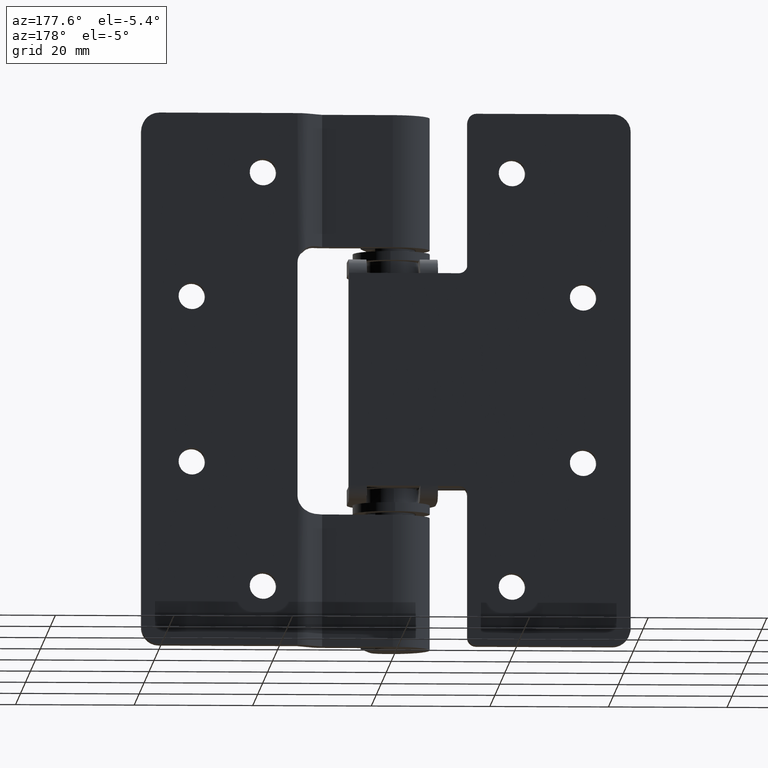
[diagram: clean part render]
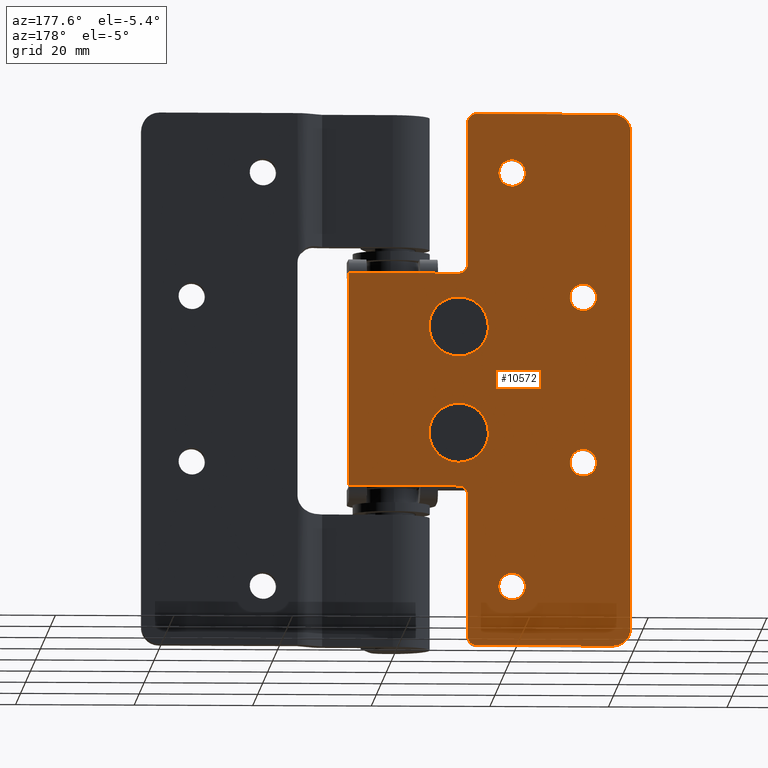
[diagram: same view with one face highlighted and labeled with its STEP entity id]
A machine part, auxiliary view. The second image highlights one B-rep face of the part: STEP entity #10572.
In plain terms, the highlighted face is a freeform B-spline surface patch.
Its self-contained STEP definition (entity closure, byte-faithful):
#8036=CARTESIAN_POINT('',(-6.009326007858777,9.500000000059496,54.305242698124232));
#8037=VERTEX_POINT('',#8036);
#8038=CARTESIAN_POINT('',(-11.000000000000201,9.500000000000000,49.0));
#8039=VERTEX_POINT('',#8038);
#8040=CARTESIAN_POINT('',(-6.009326007858777,9.500000000059496,54.305242698124232));
#8041=CARTESIAN_POINT('',(-5.999999999941666,9.500000000058643,54.152763816720324));
#8042=CARTESIAN_POINT('',(-5.999999999942574,9.500000000057735,54.000000000003539));
#8043=CARTESIAN_POINT('',(-5.999999999972267,9.500000000027985,49.000000000001727));
#8044=CARTESIAN_POINT('',(-11.000000000000201,9.500000000000000,49.0));
#8052=(BOUNDED_CURVE()B_SPLINE_CURVE(2,(#8040,#8041,#8042,#8043,#8044),.UNSPECIFIED.,.F.,.U.)B_SPLINE_CURVE_WITH_KNOTS((3,2,3),(0.239332962226537,0.250000000000000,0.500000000000000),.UNSPECIFIED.)CURVE()GEOMETRIC_REPRESENTATION_ITEM()RATIONAL_B_SPLINE_CURVE((0.976072041640131,0.987502787885303,1.0,0.707106781186548,1.0))REPRESENTATION_ITEM(''));
#8053=EDGE_CURVE('',#8037,#8039,#8052,.T.);
#8055=CARTESIAN_POINT('',(-15.990673992141620,9.500000000059497,53.694757301875768));
#8056=VERTEX_POINT('',#8055);
#8057=CARTESIAN_POINT('',(-11.000000000000201,9.500000000000000,49.0));
#8058=CARTESIAN_POINT('',(-15.703530334136957,9.500000000029749,48.999999999998181));
#8059=CARTESIAN_POINT('',(-15.990673992141625,9.500000000059496,53.694757301875768));
#8067=(BOUNDED_CURVE()B_SPLINE_CURVE(2,(#8057,#8058,#8059),.UNSPECIFIED.,.F.,.U.)B_SPLINE_CURVE_WITH_KNOTS((3,3),(0.500000000000000,0.739332962226538),.UNSPECIFIED.)CURVE()GEOMETRIC_REPRESENTATION_ITEM()RATIONAL_B_SPLINE_CURVE((1.0,0.719603993301244,0.976072041640131))REPRESENTATION_ITEM(''));
#8068=EDGE_CURVE('',#8039,#8056,#8067,.T.);
#8135=CARTESIAN_POINT('',(-11.000000000000201,9.500000000000000,59.0));
#8136=VERTEX_POINT('',#8135);
#8137=CARTESIAN_POINT('',(-11.000000000000201,9.500000000000000,59.0));
#8138=CARTESIAN_POINT('',(-6.296469665863457,9.500000000029747,59.000000000001805));
#8139=CARTESIAN_POINT('',(-6.009326007858777,9.500000000059496,54.305242698124232));
#8147=(BOUNDED_CURVE()B_SPLINE_CURVE(2,(#8137,#8138,#8139),.UNSPECIFIED.,.F.,.U.)B_SPLINE_CURVE_WITH_KNOTS((3,3),(0.0,0.239332962226537),.UNSPECIFIED.)CURVE()GEOMETRIC_REPRESENTATION_ITEM()RATIONAL_B_SPLINE_CURVE((1.0,0.719603993301244,0.976072041640130))REPRESENTATION_ITEM(''));
#8148=EDGE_CURVE('',#8136,#8037,#8147,.T.);
#8182=CARTESIAN_POINT('',(-15.990673992141627,9.500000000059497,53.694757301875768));
#8183=CARTESIAN_POINT('',(-16.000000000058730,9.500000000058643,53.847236183279712));
#8184=CARTESIAN_POINT('',(-16.000000000057820,9.500000000057733,53.999999999996483));
#8185=CARTESIAN_POINT('',(-16.000000000028127,9.500000000027985,58.999999999998280));
#8186=CARTESIAN_POINT('',(-11.000000000000201,9.500000000000000,59.0));
#8194=(BOUNDED_CURVE()B_SPLINE_CURVE(2,(#8182,#8183,#8184,#8185,#8186),.UNSPECIFIED.,.F.,.U.)B_SPLINE_CURVE_WITH_KNOTS((3,2,3),(0.739332962226537,0.750000000000000,1.0),.UNSPECIFIED.)CURVE()GEOMETRIC_REPRESENTATION_ITEM()RATIONAL_B_SPLINE_CURVE((0.976072041640130,0.987502787885303,1.0,0.707106781186548,1.0))REPRESENTATION_ITEM(''));
#8195=EDGE_CURVE('',#8056,#8136,#8194,.T.);
#8218=CARTESIAN_POINT('',(-6.009326007858775,9.500000000059497,36.305242698124232));
#8219=VERTEX_POINT('',#8218);
#8220=CARTESIAN_POINT('',(-11.000000000000201,9.500000000000000,31.0));
#8221=VERTEX_POINT('',#8220);
#8222=CARTESIAN_POINT('',(-6.009326007858777,9.500000000059497,36.305242698124232));
#8223=CARTESIAN_POINT('',(-5.999999999941667,9.500000000058643,36.152763816720309));
#8224=CARTESIAN_POINT('',(-5.999999999942575,9.500000000057733,36.000000000003517));
#8225=CARTESIAN_POINT('',(-5.999999999972268,9.500000000027985,31.000000000001705));
#8226=CARTESIAN_POINT('',(-11.000000000000201,9.500000000000000,31.0));
#8234=(BOUNDED_CURVE()B_SPLINE_CURVE(2,(#8222,#8223,#8224,#8225,#8226),.UNSPECIFIED.,.F.,.U.)B_SPLINE_CURVE_WITH_KNOTS((3,2,3),(0.239332962226537,0.250000000000000,0.500000000000000),.UNSPECIFIED.)CURVE()GEOMETRIC_REPRESENTATION_ITEM()RATIONAL_B_SPLINE_CURVE((0.976072041640131,0.987502787885303,1.0,0.707106781186548,1.0))REPRESENTATION_ITEM(''));
#8235=EDGE_CURVE('',#8219,#8221,#8234,.T.);
#8237=CARTESIAN_POINT('',(-15.990673992141620,9.500000000059496,35.694757301875768));
#8238=VERTEX_POINT('',#8237);
#8239=CARTESIAN_POINT('',(-11.000000000000201,9.500000000000000,31.0));
#8240=CARTESIAN_POINT('',(-15.703530334136927,9.500000000029750,30.999999999998192));
#8241=CARTESIAN_POINT('',(-15.990673992141618,9.500000000059497,35.694757301875761));
#8249=(BOUNDED_CURVE()B_SPLINE_CURVE(2,(#8239,#8240,#8241),.UNSPECIFIED.,.F.,.U.)B_SPLINE_CURVE_WITH_KNOTS((3,3),(0.500000000000000,0.739332962226537),.UNSPECIFIED.)CURVE()GEOMETRIC_REPRESENTATION_ITEM()RATIONAL_B_SPLINE_CURVE((1.0,0.719603993301245,0.976072041640130))REPRESENTATION_ITEM(''));
#8250=EDGE_CURVE('',#8221,#8238,#8249,.T.);
#8317=CARTESIAN_POINT('',(-11.000000000000201,9.500000000000000,40.999999999999993));
#8318=VERTEX_POINT('',#8317);
#8319=CARTESIAN_POINT('',(-11.000000000000201,9.500000000000000,40.999999999999993));
#8320=CARTESIAN_POINT('',(-6.296469665863457,9.500000000029747,41.000000000001805));
#8321=CARTESIAN_POINT('',(-6.009326007858777,9.500000000059497,36.305242698124232));
#8329=(BOUNDED_CURVE()B_SPLINE_CURVE(2,(#8319,#8320,#8321),.UNSPECIFIED.,.F.,.U.)B_SPLINE_CURVE_WITH_KNOTS((3,3),(0.0,0.239332962226537),.UNSPECIFIED.)CURVE()GEOMETRIC_REPRESENTATION_ITEM()RATIONAL_B_SPLINE_CURVE((1.0,0.719603993301244,0.976072041640130))REPRESENTATION_ITEM(''));
#8330=EDGE_CURVE('',#8318,#8219,#8329,.T.);
#8364=CARTESIAN_POINT('',(-15.990673992141618,9.500000000059497,35.694757301875761));
#8365=CARTESIAN_POINT('',(-16.000000000058737,9.500000000058643,35.847236183279712));
#8366=CARTESIAN_POINT('',(-16.000000000057831,9.500000000057735,35.999999999996497));
#8367=CARTESIAN_POINT('',(-16.000000000028127,9.500000000027985,40.999999999998288));
#8368=CARTESIAN_POINT('',(-11.000000000000201,9.500000000000000,40.999999999999993));
#8376=(BOUNDED_CURVE()B_SPLINE_CURVE(2,(#8364,#8365,#8366,#8367,#8368),.UNSPECIFIED.,.F.,.U.)B_SPLINE_CURVE_WITH_KNOTS((3,2,3),(0.739332962226537,0.750000000000000,1.0),.UNSPECIFIED.)CURVE()GEOMETRIC_REPRESENTATION_ITEM()RATIONAL_B_SPLINE_CURVE((0.976072041640130,0.987502787885303,1.0,0.707106781186548,1.0))REPRESENTATION_ITEM(''));
#8377=EDGE_CURVE('',#8238,#8318,#8376,.T.);
#8400=CARTESIAN_POINT('',(-20.0,9.500000000000000,82.250000000000000));
#8401=VERTEX_POINT('',#8400);
#8402=CARTESIAN_POINT('',(-22.243064000878789,9.500000000000000,80.176532965651262));
#8403=VERTEX_POINT('',#8402);
#8404=CARTESIAN_POINT('',(-20.0,9.500000000000000,82.250000000000000));
#8405=CARTESIAN_POINT('',(-22.079878605985783,9.499999999999998,82.249999999999972));
#8406=CARTESIAN_POINT('',(-22.243064000878793,9.500000000000000,80.176532965651248));
#8414=(BOUNDED_CURVE()B_SPLINE_CURVE(2,(#8404,#8405,#8406),.UNSPECIFIED.,.F.,.U.)B_SPLINE_CURVE_WITH_KNOTS((3,3),(0.0,0.236331300612622),.UNSPECIFIED.)CURVE()GEOMETRIC_REPRESENTATION_ITEM()RATIONAL_B_SPLINE_CURVE((1.0,0.723120658628798,0.969723356129774))REPRESENTATION_ITEM(''));
#8415=EDGE_CURVE('',#8401,#8403,#8414,.T.);
#8417=CARTESIAN_POINT('',(-17.756935999121211,9.500000000000000,79.823467034348738));
#8418=VERTEX_POINT('',#8417);
#8419=CARTESIAN_POINT('',(-17.756935999121211,9.500000000000000,79.823467034348738));
#8420=CARTESIAN_POINT('',(-17.750000000000011,9.500000000000000,79.911597259100319));
#8421=CARTESIAN_POINT('',(-17.750000000000000,9.500000000000000,80.0));
#8422=CARTESIAN_POINT('',(-17.750000000000004,9.500000000000000,82.250000000000000));
#8423=CARTESIAN_POINT('',(-20.0,9.500000000000000,82.250000000000000));
#8431=(BOUNDED_CURVE()B_SPLINE_CURVE(2,(#8419,#8420,#8421,#8422,#8423),.UNSPECIFIED.,.F.,.U.)B_SPLINE_CURVE_WITH_KNOTS((3,2,3),(0.736331300612621,0.750000000000000,1.0),.UNSPECIFIED.)CURVE()GEOMETRIC_REPRESENTATION_ITEM()RATIONAL_B_SPLINE_CURVE((0.969723356129773,0.983986122557749,1.0,0.707106781186547,1.0))REPRESENTATION_ITEM(''));
#8432=EDGE_CURVE('',#8418,#8401,#8431,.T.);
#8499=CARTESIAN_POINT('',(-20.0,9.500000000000000,77.750000000000000));
#8500=VERTEX_POINT('',#8499);
#8501=CARTESIAN_POINT('',(-22.243064000878793,9.500000000000000,80.176532965651234));
#8502=CARTESIAN_POINT('',(-22.250000000000000,9.500000000000000,80.088402740899653));
#8503=CARTESIAN_POINT('',(-22.250000000000000,9.500000000000000,80.0));
#8504=CARTESIAN_POINT('',(-22.250000000000000,9.500000000000000,77.750000000000014));
#8505=CARTESIAN_POINT('',(-20.0,9.500000000000000,77.750000000000000));
#8513=(BOUNDED_CURVE()B_SPLINE_CURVE(2,(#8501,#8502,#8503,#8504,#8505),.UNSPECIFIED.,.F.,.U.)B_SPLINE_CURVE_WITH_KNOTS((3,2,3),(0.236331300612622,0.250000000000000,0.500000000000000),.UNSPECIFIED.)CURVE()GEOMETRIC_REPRESENTATION_ITEM()RATIONAL_B_SPLINE_CURVE((0.969723356129774,0.983986122557749,1.0,0.707106781186547,1.0))REPRESENTATION_ITEM(''));
#8514=EDGE_CURVE('',#8403,#8500,#8513,.T.);
#8548=CARTESIAN_POINT('',(-20.0,9.500000000000000,77.750000000000000));
#8549=CARTESIAN_POINT('',(-17.920121394014231,9.499999999999998,77.750000000000000));
#8550=CARTESIAN_POINT('',(-17.756935999121215,9.500000000000000,79.823467034348724));
#8558=(BOUNDED_CURVE()B_SPLINE_CURVE(2,(#8548,#8549,#8550),.UNSPECIFIED.,.F.,.U.)B_SPLINE_CURVE_WITH_KNOTS((3,3),(0.500000000000000,0.736331300612620),.UNSPECIFIED.)CURVE()GEOMETRIC_REPRESENTATION_ITEM()RATIONAL_B_SPLINE_CURVE((1.0,0.723120658628800,0.969723356129771))REPRESENTATION_ITEM(''));
#8559=EDGE_CURVE('',#8500,#8418,#8558,.T.);
#8582=CARTESIAN_POINT('',(-32.0,9.500000000000000,61.250000000000000));
#8583=VERTEX_POINT('',#8582);
#8584=CARTESIAN_POINT('',(-34.243064000878789,9.500000000000000,59.176532965651262));
#8585=VERTEX_POINT('',#8584);
#8586=CARTESIAN_POINT('',(-32.0,9.500000000000000,61.250000000000000));
#8587=CARTESIAN_POINT('',(-34.079878605985790,9.500000000000000,61.249999999999979));
#8588=CARTESIAN_POINT('',(-34.243064000878796,9.500000000000002,59.176532965651248));
#8596=(BOUNDED_CURVE()B_SPLINE_CURVE(2,(#8586,#8587,#8588),.UNSPECIFIED.,.F.,.U.)B_SPLINE_CURVE_WITH_KNOTS((3,3),(0.0,0.236331300612621),.UNSPECIFIED.)CURVE()GEOMETRIC_REPRESENTATION_ITEM()RATIONAL_B_SPLINE_CURVE((1.0,0.723120658628799,0.969723356129773))REPRESENTATION_ITEM(''));
#8597=EDGE_CURVE('',#8583,#8585,#8596,.T.);
#8599=CARTESIAN_POINT('',(-29.756935999121211,9.500000000000000,58.823467034348752));
#8600=VERTEX_POINT('',#8599);
#8601=CARTESIAN_POINT('',(-29.756935999121207,9.500000000000000,58.823467034348759));
#8602=CARTESIAN_POINT('',(-29.750000000000004,9.500000000000002,58.911597259100340));
#8603=CARTESIAN_POINT('',(-29.750000000000000,9.500000000000000,59.0));
#8604=CARTESIAN_POINT('',(-29.750000000000007,9.500000000000000,61.250000000000000));
#8605=CARTESIAN_POINT('',(-32.0,9.500000000000000,61.250000000000000));
#8613=(BOUNDED_CURVE()B_SPLINE_CURVE(2,(#8601,#8602,#8603,#8604,#8605),.UNSPECIFIED.,.F.,.U.)B_SPLINE_CURVE_WITH_KNOTS((3,2,3),(0.736331300612622,0.750000000000000,1.0),.UNSPECIFIED.)CURVE()GEOMETRIC_REPRESENTATION_ITEM()RATIONAL_B_SPLINE_CURVE((0.969723356129774,0.983986122557749,1.0,0.707106781186547,1.0))REPRESENTATION_ITEM(''));
#8614=EDGE_CURVE('',#8600,#8583,#8613,.T.);
#8681=CARTESIAN_POINT('',(-32.0,9.500000000000000,56.749999999999993));
#8682=VERTEX_POINT('',#8681);
#8683=CARTESIAN_POINT('',(-34.243064000878789,9.500000000000000,59.176532965651262));
#8684=CARTESIAN_POINT('',(-34.249999999999993,9.500000000000000,59.088402740899674));
#8685=CARTESIAN_POINT('',(-34.250000000000000,9.500000000000000,59.0));
#8686=CARTESIAN_POINT('',(-34.250000000000000,9.500000000000000,56.749999999999993));
#8687=CARTESIAN_POINT('',(-32.0,9.500000000000000,56.749999999999993));
#8695=(BOUNDED_CURVE()B_SPLINE_CURVE(2,(#8683,#8684,#8685,#8686,#8687),.UNSPECIFIED.,.F.,.U.)B_SPLINE_CURVE_WITH_KNOTS((3,2,3),(0.236331300612621,0.250000000000000,0.500000000000000),.UNSPECIFIED.)CURVE()GEOMETRIC_REPRESENTATION_ITEM()RATIONAL_B_SPLINE_CURVE((0.969723356129773,0.983986122557749,1.0,0.707106781186547,1.0))REPRESENTATION_ITEM(''));
#8696=EDGE_CURVE('',#8585,#8682,#8695,.T.);
#8730=CARTESIAN_POINT('',(-32.0,9.500000000000000,56.749999999999993));
#8731=CARTESIAN_POINT('',(-29.920121394014227,9.500000000000000,56.749999999999986));
#8732=CARTESIAN_POINT('',(-29.756935999121211,9.500000000000000,58.823467034348731));
#8740=(BOUNDED_CURVE()B_SPLINE_CURVE(2,(#8730,#8731,#8732),.UNSPECIFIED.,.F.,.U.)B_SPLINE_CURVE_WITH_KNOTS((3,3),(0.500000000000000,0.736331300612621),.UNSPECIFIED.)CURVE()GEOMETRIC_REPRESENTATION_ITEM()RATIONAL_B_SPLINE_CURVE((1.0,0.723120658628799,0.969723356129772))REPRESENTATION_ITEM(''));
#8741=EDGE_CURVE('',#8682,#8600,#8740,.T.);
#8764=CARTESIAN_POINT('',(-20.0,9.500000000000000,12.250000000000000));
#8765=VERTEX_POINT('',#8764);
#8766=CARTESIAN_POINT('',(-22.243064000878789,9.500000000000000,10.176532965651260));
#8767=VERTEX_POINT('',#8766);
#8768=CARTESIAN_POINT('',(-20.0,9.500000000000000,12.250000000000000));
#8769=CARTESIAN_POINT('',(-22.079878605985783,9.500000000000000,12.249999999999996));
#8770=CARTESIAN_POINT('',(-22.243064000878793,9.500000000000002,10.176532965651257));
#8778=(BOUNDED_CURVE()B_SPLINE_CURVE(2,(#8768,#8769,#8770),.UNSPECIFIED.,.F.,.U.)B_SPLINE_CURVE_WITH_KNOTS((3,3),(0.0,0.236331300612621),.UNSPECIFIED.)CURVE()GEOMETRIC_REPRESENTATION_ITEM()RATIONAL_B_SPLINE_CURVE((1.0,0.723120658628799,0.969723356129773))REPRESENTATION_ITEM(''));
#8779=EDGE_CURVE('',#8765,#8767,#8778,.T.);
#8781=CARTESIAN_POINT('',(-17.756935999121211,9.500000000000000,9.823467034348743));
#8782=VERTEX_POINT('',#8781);
#8783=CARTESIAN_POINT('',(-17.756935999121215,9.499999999999998,9.823467034348738));
#8784=CARTESIAN_POINT('',(-17.750000000000007,9.499999999999998,9.911597259100326));
#8785=CARTESIAN_POINT('',(-17.750000000000000,9.500000000000000,10.0));
#8786=CARTESIAN_POINT('',(-17.750000000000004,9.500000000000000,12.249999999999996));
#8787=CARTESIAN_POINT('',(-20.0,9.500000000000000,12.250000000000000));
#8795=(BOUNDED_CURVE()B_SPLINE_CURVE(2,(#8783,#8784,#8785,#8786,#8787),.UNSPECIFIED.,.F.,.U.)B_SPLINE_CURVE_WITH_KNOTS((3,2,3),(0.736331300612621,0.750000000000000,1.0),.UNSPECIFIED.)CURVE()GEOMETRIC_REPRESENTATION_ITEM()RATIONAL_B_SPLINE_CURVE((0.969723356129773,0.983986122557748,1.0,0.707106781186547,1.0))REPRESENTATION_ITEM(''));
#8796=EDGE_CURVE('',#8782,#8765,#8795,.T.);
#8863=CARTESIAN_POINT('',(-20.0,9.500000000000000,7.750000000000000));
#8864=VERTEX_POINT('',#8863);
#8865=CARTESIAN_POINT('',(-22.243064000878789,9.500000000000000,10.176532965651257));
#8866=CARTESIAN_POINT('',(-22.250000000000007,9.500000000000000,10.088402740899669));
#8867=CARTESIAN_POINT('',(-22.250000000000000,9.500000000000000,10.0));
#8868=CARTESIAN_POINT('',(-22.250000000000000,9.500000000000000,7.750000000000001));
#8869=CARTESIAN_POINT('',(-20.0,9.500000000000000,7.750000000000000));
#8877=(BOUNDED_CURVE()B_SPLINE_CURVE(2,(#8865,#8866,#8867,#8868,#8869),.UNSPECIFIED.,.F.,.U.)B_SPLINE_CURVE_WITH_KNOTS((3,2,3),(0.236331300612621,0.250000000000000,0.500000000000000),.UNSPECIFIED.)CURVE()GEOMETRIC_REPRESENTATION_ITEM()RATIONAL_B_SPLINE_CURVE((0.969723356129773,0.983986122557749,1.0,0.707106781186547,1.0))REPRESENTATION_ITEM(''));
#8878=EDGE_CURVE('',#8767,#8864,#8877,.T.);
#8912=CARTESIAN_POINT('',(-20.0,9.500000000000000,7.750000000000000));
#8913=CARTESIAN_POINT('',(-17.920121394014224,9.499999999999998,7.749999999999999));
#8914=CARTESIAN_POINT('',(-17.756935999121215,9.499999999999998,9.823467034348738));
#8922=(BOUNDED_CURVE()B_SPLINE_CURVE(2,(#8912,#8913,#8914),.UNSPECIFIED.,.F.,.U.)B_SPLINE_CURVE_WITH_KNOTS((3,3),(0.500000000000000,0.736331300612621),.UNSPECIFIED.)CURVE()GEOMETRIC_REPRESENTATION_ITEM()RATIONAL_B_SPLINE_CURVE((1.0,0.723120658628799,0.969723356129773))REPRESENTATION_ITEM(''));
#8923=EDGE_CURVE('',#8864,#8782,#8922,.T.);
#8946=CARTESIAN_POINT('',(-32.0,9.500000000000000,33.250000000000000));
#8947=VERTEX_POINT('',#8946);
#8948=CARTESIAN_POINT('',(-34.243064000878789,9.499999999999998,31.176532965651258));
#8949=VERTEX_POINT('',#8948);
#8950=CARTESIAN_POINT('',(-32.0,9.500000000000000,33.250000000000000));
#8951=CARTESIAN_POINT('',(-34.079878605985776,9.500000000000000,33.249999999999993));
#8952=CARTESIAN_POINT('',(-34.243064000878789,9.500000000000002,31.176532965651262));
#8960=(BOUNDED_CURVE()B_SPLINE_CURVE(2,(#8950,#8951,#8952),.UNSPECIFIED.,.F.,.U.)B_SPLINE_CURVE_WITH_KNOTS((3,3),(0.0,0.236331300612621),.UNSPECIFIED.)CURVE()GEOMETRIC_REPRESENTATION_ITEM()RATIONAL_B_SPLINE_CURVE((1.0,0.723120658628799,0.969723356129773))REPRESENTATION_ITEM(''));
#8961=EDGE_CURVE('',#8947,#8949,#8960,.T.);
#8963=CARTESIAN_POINT('',(-29.756935999121211,9.500000000000000,30.823467034348742));
#8964=VERTEX_POINT('',#8963);
#8965=CARTESIAN_POINT('',(-29.756935999121215,9.499999999999998,30.823467034348738));
#8966=CARTESIAN_POINT('',(-29.750000000000007,9.500000000000000,30.911597259100326));
#8967=CARTESIAN_POINT('',(-29.750000000000000,9.500000000000000,31.0));
#8968=CARTESIAN_POINT('',(-29.750000000000007,9.500000000000000,33.249999999999993));
#8969=CARTESIAN_POINT('',(-32.0,9.500000000000000,33.250000000000000));
#8977=(BOUNDED_CURVE()B_SPLINE_CURVE(2,(#8965,#8966,#8967,#8968,#8969),.UNSPECIFIED.,.F.,.U.)B_SPLINE_CURVE_WITH_KNOTS((3,2,3),(0.736331300612621,0.750000000000000,1.0),.UNSPECIFIED.)CURVE()GEOMETRIC_REPRESENTATION_ITEM()RATIONAL_B_SPLINE_CURVE((0.969723356129772,0.983986122557748,1.0,0.707106781186547,1.0))REPRESENTATION_ITEM(''));
#8978=EDGE_CURVE('',#8964,#8947,#8977,.T.);
#9045=CARTESIAN_POINT('',(-32.0,9.500000000000000,28.750000000000000));
#9046=VERTEX_POINT('',#9045);
#9047=CARTESIAN_POINT('',(-34.243064000878789,9.500000000000002,31.176532965651262));
#9048=CARTESIAN_POINT('',(-34.250000000000007,9.500000000000002,31.088402740899671));
#9049=CARTESIAN_POINT('',(-34.250000000000000,9.500000000000000,31.0));
#9050=CARTESIAN_POINT('',(-34.250000000000000,9.500000000000000,28.750000000000000));
#9051=CARTESIAN_POINT('',(-32.0,9.500000000000000,28.750000000000000));
#9059=(BOUNDED_CURVE()B_SPLINE_CURVE(2,(#9047,#9048,#9049,#9050,#9051),.UNSPECIFIED.,.F.,.U.)B_SPLINE_CURVE_WITH_KNOTS((3,2,3),(0.236331300612621,0.250000000000000,0.500000000000000),.UNSPECIFIED.)CURVE()GEOMETRIC_REPRESENTATION_ITEM()RATIONAL_B_SPLINE_CURVE((0.969723356129773,0.983986122557749,1.0,0.707106781186547,1.0))REPRESENTATION_ITEM(''));
#9060=EDGE_CURVE('',#8949,#9046,#9059,.T.);
#9094=CARTESIAN_POINT('',(-32.0,9.500000000000000,28.750000000000000));
#9095=CARTESIAN_POINT('',(-29.920121394014227,9.500000000000000,28.749999999999996));
#9096=CARTESIAN_POINT('',(-29.756935999121211,9.500000000000000,30.823467034348738));
#9104=(BOUNDED_CURVE()B_SPLINE_CURVE(2,(#9094,#9095,#9096),.UNSPECIFIED.,.F.,.U.)B_SPLINE_CURVE_WITH_KNOTS((3,3),(0.500000000000000,0.736331300612621),.UNSPECIFIED.)CURVE()GEOMETRIC_REPRESENTATION_ITEM()RATIONAL_B_SPLINE_CURVE((1.0,0.723120658628799,0.969723356129772))REPRESENTATION_ITEM(''));
#9105=EDGE_CURVE('',#9046,#8964,#9104,.T.);
#9115=CARTESIAN_POINT('',(-40.0,9.500000000000000,3.0));
#9116=VERTEX_POINT('',#9115);
#9117=CARTESIAN_POINT('',(-40.0,9.500000000000000,87.0));
#9118=VERTEX_POINT('',#9117);
#9119=CARTESIAN_POINT('',(-40.0,9.500000000000000,3.0));
#9120=CARTESIAN_POINT('',(-40.0,9.500000000000000,87.0));
#9121=QUASI_UNIFORM_CURVE('',1,(#9119,#9120),.UNSPECIFIED.,.F.,.U.);
#9122=EDGE_CURVE('',#9116,#9118,#9121,.T.);
#9151=CARTESIAN_POINT('',(-13.999999999999799,9.500000000000000,0.0));
#9152=VERTEX_POINT('',#9151);
#9153=CARTESIAN_POINT('',(-37.0,9.500000000000000,0.0));
#9154=VERTEX_POINT('',#9153);
#9155=CARTESIAN_POINT('',(-13.999999999999799,9.500000000000000,0.0));
#9156=CARTESIAN_POINT('',(-37.0,9.500000000000000,0.0));
#9157=QUASI_UNIFORM_CURVE('',1,(#9155,#9156),.UNSPECIFIED.,.F.,.U.);
#9158=EDGE_CURVE('',#9152,#9154,#9157,.T.);
#9187=CARTESIAN_POINT('',(-12.499999999999719,9.500000000000000,25.500000000000000));
#9188=VERTEX_POINT('',#9187);
#9189=CARTESIAN_POINT('',(-12.499999999999799,9.500000000000000,1.500000000000000));
#9190=VERTEX_POINT('',#9189);
#9191=CARTESIAN_POINT('',(-12.499999999999719,9.500000000000000,25.500000000000000));
#9192=CARTESIAN_POINT('',(-12.499999999999799,9.500000000000000,1.500000000000000));
#9193=QUASI_UNIFORM_CURVE('',1,(#9191,#9192),.UNSPECIFIED.,.F.,.U.);
#9194=EDGE_CURVE('',#9188,#9190,#9193,.T.);
#9223=CARTESIAN_POINT('',(7.500000000000280,9.500000000000000,63.0));
#9224=VERTEX_POINT('',#9223);
#9225=CARTESIAN_POINT('',(7.500000000000280,9.500000000000000,27.0));
#9226=VERTEX_POINT('',#9225);
#9227=CARTESIAN_POINT('',(7.500000000000280,9.500000000000000,63.0));
#9228=CARTESIAN_POINT('',(7.500000000000280,9.500000000000000,27.0));
#9229=QUASI_UNIFORM_CURVE('',1,(#9227,#9228),.UNSPECIFIED.,.F.,.U.);
#9230=EDGE_CURVE('',#9224,#9226,#9229,.T.);
#9317=CARTESIAN_POINT('',(-12.499999999999799,9.500000000000000,88.500000000000000));
#9318=VERTEX_POINT('',#9317);
#9319=CARTESIAN_POINT('',(-12.499999999999799,9.500000000000000,64.500000000000000));
#9320=VERTEX_POINT('',#9319);
#9321=CARTESIAN_POINT('',(-12.499999999999799,9.500000000000000,88.500000000000000));
#9322=CARTESIAN_POINT('',(-12.499999999999799,9.500000000000000,64.500000000000000));
#9323=QUASI_UNIFORM_CURVE('',1,(#9321,#9322),.UNSPECIFIED.,.F.,.U.);
#9324=EDGE_CURVE('',#9318,#9320,#9323,.T.);
#9362=CARTESIAN_POINT('',(-13.999999999999799,9.500000000000000,90.0));
#9363=VERTEX_POINT('',#9362);
#9369=CARTESIAN_POINT('',(-37.0,9.500000000000000,90.0));
#9370=VERTEX_POINT('',#9369);
#9371=CARTESIAN_POINT('',(-37.0,9.500000000000000,90.0));
#9372=CARTESIAN_POINT('',(-13.999999999999799,9.500000000000000,90.0));
#9373=QUASI_UNIFORM_CURVE('',1,(#9371,#9372),.UNSPECIFIED.,.F.,.U.);
#9374=EDGE_CURVE('',#9370,#9363,#9373,.T.);
#9389=CARTESIAN_POINT('',(4.499999999999605,9.500000000000000,27.0));
#9390=VERTEX_POINT('',#9389);
#9391=CARTESIAN_POINT('',(-4.499999999999915,9.500000000000000,27.0));
#9392=VERTEX_POINT('',#9391);
#9393=CARTESIAN_POINT('',(4.499999999999605,9.500000000000000,27.0));
#9394=CARTESIAN_POINT('',(-4.499999999999915,9.500000000000000,27.0));
#9395=QUASI_UNIFORM_CURVE('',1,(#9393,#9394),.UNSPECIFIED.,.F.,.U.);
#9396=EDGE_CURVE('',#9390,#9392,#9395,.T.);
#9425=CARTESIAN_POINT('',(-7.500000000000110,9.500000000000000,27.0));
#9426=VERTEX_POINT('',#9425);
#9427=CARTESIAN_POINT('',(-10.999999999999719,9.500000000000000,27.0));
#9428=VERTEX_POINT('',#9427);
#9429=CARTESIAN_POINT('',(-7.500000000000110,9.500000000000000,27.0));
#9430=CARTESIAN_POINT('',(-10.999999999999719,9.500000000000000,27.0));
#9431=QUASI_UNIFORM_CURVE('',1,(#9429,#9430),.UNSPECIFIED.,.F.,.U.);
#9432=EDGE_CURVE('',#9426,#9428,#9431,.T.);
#9470=CARTESIAN_POINT('',(4.499999999999480,9.500000000000000,63.0));
#9471=VERTEX_POINT('',#9470);
#9477=CARTESIAN_POINT('',(-4.500000000000000,9.500000000000000,63.0));
#9478=VERTEX_POINT('',#9477);
#9479=CARTESIAN_POINT('',(-4.500000000000000,9.500000000000000,63.0));
#9480=CARTESIAN_POINT('',(4.499999999999480,9.500000000000000,63.0));
#9481=QUASI_UNIFORM_CURVE('',1,(#9479,#9480),.UNSPECIFIED.,.F.,.U.);
#9482=EDGE_CURVE('',#9478,#9471,#9481,.T.);
#9507=CARTESIAN_POINT('',(4.499999999999480,9.500000000000000,63.0));
#9508=CARTESIAN_POINT('',(7.500000000000280,9.500000000000000,63.0));
#9509=QUASI_UNIFORM_CURVE('',1,(#9507,#9508),.UNSPECIFIED.,.F.,.U.);
#9510=EDGE_CURVE('',#9471,#9224,#9509,.T.);
#9564=CARTESIAN_POINT('',(-7.500000000000240,9.500000000000000,63.0));
#9565=VERTEX_POINT('',#9564);
#9566=CARTESIAN_POINT('',(-7.500000000000240,9.500000000000000,63.0));
#9567=CARTESIAN_POINT('',(-4.500000000000000,9.500000000000000,63.0));
#9568=QUASI_UNIFORM_CURVE('',1,(#9566,#9567),.UNSPECIFIED.,.F.,.U.);
#9569=EDGE_CURVE('',#9565,#9478,#9568,.T.);
#9643=CARTESIAN_POINT('',(-4.499999999999915,9.500000000000000,27.0));
#9644=CARTESIAN_POINT('',(-7.500000000000110,9.500000000000000,27.0));
#9645=QUASI_UNIFORM_CURVE('',1,(#9643,#9644),.UNSPECIFIED.,.F.,.U.);
#9646=EDGE_CURVE('',#9392,#9426,#9645,.T.);
#9686=CARTESIAN_POINT('',(7.500000000000280,9.500000000000000,27.0));
#9687=CARTESIAN_POINT('',(4.499999999999605,9.500000000000000,27.0));
#9688=QUASI_UNIFORM_CURVE('',1,(#9686,#9687),.UNSPECIFIED.,.F.,.U.);
#9689=EDGE_CURVE('',#9226,#9390,#9688,.T.);
#10255=CARTESIAN_POINT('',(-12.499999999999799,9.500000000000000,1.500000000000000));
#10256=CARTESIAN_POINT('',(-12.499999999999799,9.500000000000000,0.0));
#10257=CARTESIAN_POINT('',(-13.999999999999799,9.500000000000000,0.0));
#10265=(BOUNDED_CURVE()B_SPLINE_CURVE(2,(#10255,#10256,#10257),.UNSPECIFIED.,.F.,.U.)CURVE()GEOMETRIC_REPRESENTATION_ITEM()QUASI_UNIFORM_CURVE()RATIONAL_B_SPLINE_CURVE((1.0,0.707106781186548,1.0))REPRESENTATION_ITEM(''));
#10266=EDGE_CURVE('',#9190,#9152,#10265,.T.);
#10300=CARTESIAN_POINT('',(-10.999999999999719,9.500000000000000,27.0));
#10301=CARTESIAN_POINT('',(-12.499999999999718,9.500000000000000,27.000000000000011));
#10302=CARTESIAN_POINT('',(-12.499999999999719,9.500000000000000,25.500000000000000));
#10310=(BOUNDED_CURVE()B_SPLINE_CURVE(2,(#10300,#10301,#10302),.UNSPECIFIED.,.F.,.U.)CURVE()GEOMETRIC_REPRESENTATION_ITEM()QUASI_UNIFORM_CURVE()RATIONAL_B_SPLINE_CURVE((1.0,0.707106781186548,1.0))REPRESENTATION_ITEM(''));
#10311=EDGE_CURVE('',#9428,#9188,#10310,.T.);
#10346=CARTESIAN_POINT('',(-10.999999999999799,9.500000000000000,63.0));
#10347=VERTEX_POINT('',#10346);
#10353=CARTESIAN_POINT('',(-12.499999999999799,9.500000000000000,64.500000000000000));
#10354=CARTESIAN_POINT('',(-12.499999999999799,9.500000000000000,63.0));
#10355=CARTESIAN_POINT('',(-10.999999999999799,9.500000000000000,63.0));
#10363=(BOUNDED_CURVE()B_SPLINE_CURVE(2,(#10353,#10354,#10355),.UNSPECIFIED.,.F.,.U.)CURVE()GEOMETRIC_REPRESENTATION_ITEM()QUASI_UNIFORM_CURVE()RATIONAL_B_SPLINE_CURVE((1.0,0.707106781186548,1.0))REPRESENTATION_ITEM(''));
#10364=EDGE_CURVE('',#9320,#10347,#10363,.T.);
#10398=CARTESIAN_POINT('',(-13.999999999999799,9.500000000000000,90.0));
#10399=CARTESIAN_POINT('',(-12.499999999999799,9.500000000000000,89.999999999999986));
#10400=CARTESIAN_POINT('',(-12.499999999999799,9.500000000000000,88.500000000000000));
#10408=(BOUNDED_CURVE()B_SPLINE_CURVE(2,(#10398,#10399,#10400),.UNSPECIFIED.,.F.,.U.)CURVE()GEOMETRIC_REPRESENTATION_ITEM()QUASI_UNIFORM_CURVE()RATIONAL_B_SPLINE_CURVE((1.0,0.707106781186548,1.0))REPRESENTATION_ITEM(''));
#10409=EDGE_CURVE('',#9363,#9318,#10408,.T.);
#10443=CARTESIAN_POINT('',(-40.0,9.500000000000000,87.0));
#10444=CARTESIAN_POINT('',(-39.999999999999993,9.500000000000000,89.999999999999986));
#10445=CARTESIAN_POINT('',(-37.0,9.500000000000000,90.0));
#10453=(BOUNDED_CURVE()B_SPLINE_CURVE(2,(#10443,#10444,#10445),.UNSPECIFIED.,.F.,.U.)CURVE()GEOMETRIC_REPRESENTATION_ITEM()QUASI_UNIFORM_CURVE()RATIONAL_B_SPLINE_CURVE((1.0,0.707106781186548,1.0))REPRESENTATION_ITEM(''));
#10454=EDGE_CURVE('',#9118,#9370,#10453,.T.);
#10488=CARTESIAN_POINT('',(-37.0,9.500000000000000,0.0));
#10489=CARTESIAN_POINT('',(-39.999999999999993,9.500000000000000,0.0));
#10490=CARTESIAN_POINT('',(-40.0,9.500000000000000,3.0));
#10498=(BOUNDED_CURVE()B_SPLINE_CURVE(2,(#10488,#10489,#10490),.UNSPECIFIED.,.F.,.U.)CURVE()GEOMETRIC_REPRESENTATION_ITEM()QUASI_UNIFORM_CURVE()RATIONAL_B_SPLINE_CURVE((1.0,0.707106781186548,1.0))REPRESENTATION_ITEM(''));
#10499=EDGE_CURVE('',#9154,#9116,#10498,.T.);
#10505=CARTESIAN_POINT('',(-42.372624907935787,9.500000000000000,94.495499825562533));
#10506=CARTESIAN_POINT('',(9.872626181985357,9.500000000000000,94.495499825562533));
#10507=CARTESIAN_POINT('',(-42.372624907935787,9.500000000000000,-4.495502239550651));
#10508=CARTESIAN_POINT('',(9.872626181985357,9.500000000000000,-4.495502239550651));
#10509=B_SPLINE_SURFACE_WITH_KNOTS('',1,1,((#10505,#10507),(#10506,#10508)),.UNSPECIFIED.,.F.,.F.,.U.,(2,2),(2,2),(0.0,52.245251089921162),(0.0,98.991002065113179),.UNSPECIFIED.);
#10510=CARTESIAN_POINT('',(-10.999999999999799,9.500000000000000,63.0));
#10511=CARTESIAN_POINT('',(-7.500000000000240,9.500000000000000,63.0));
#10512=QUASI_UNIFORM_CURVE('',1,(#10510,#10511),.UNSPECIFIED.,.F.,.U.);
#10513=EDGE_CURVE('',#10347,#9565,#10512,.T.);
#10514=ORIENTED_EDGE('',*,*,#10513,.T.);
#10515=ORIENTED_EDGE('',*,*,#9569,.T.);
#10516=ORIENTED_EDGE('',*,*,#9482,.T.);
#10517=ORIENTED_EDGE('',*,*,#9510,.T.);
#10518=ORIENTED_EDGE('',*,*,#9230,.T.);
#10519=ORIENTED_EDGE('',*,*,#9689,.T.);
#10520=ORIENTED_EDGE('',*,*,#9396,.T.);
#10521=ORIENTED_EDGE('',*,*,#9646,.T.);
#10522=ORIENTED_EDGE('',*,*,#9432,.T.);
#10523=ORIENTED_EDGE('',*,*,#10311,.T.);
#10524=ORIENTED_EDGE('',*,*,#9194,.T.);
#10525=ORIENTED_EDGE('',*,*,#10266,.T.);
#10526=ORIENTED_EDGE('',*,*,#9158,.T.);
#10527=ORIENTED_EDGE('',*,*,#10499,.T.);
#10528=ORIENTED_EDGE('',*,*,#9122,.T.);
#10529=ORIENTED_EDGE('',*,*,#10454,.T.);
#10530=ORIENTED_EDGE('',*,*,#9374,.T.);
#10531=ORIENTED_EDGE('',*,*,#10409,.T.);
#10532=ORIENTED_EDGE('',*,*,#9324,.T.);
#10533=ORIENTED_EDGE('',*,*,#10364,.T.);
#10534=EDGE_LOOP('',(#10514,#10515,#10516,#10517,#10518,#10519,#10520,#10521,#10522,#10523,#10524,#10525,#10526,#10527,#10528,#10529,#10530,#10531,#10532,#10533));
#10535=FACE_OUTER_BOUND('',#10534,.T.);
#10536=ORIENTED_EDGE('',*,*,#9105,.T.);
#10537=ORIENTED_EDGE('',*,*,#8978,.T.);
#10538=ORIENTED_EDGE('',*,*,#8961,.T.);
#10539=ORIENTED_EDGE('',*,*,#9060,.T.);
#10540=EDGE_LOOP('',(#10536,#10537,#10538,#10539));
#10541=FACE_BOUND('',#10540,.T.);
#10542=ORIENTED_EDGE('',*,*,#8923,.T.);
#10543=ORIENTED_EDGE('',*,*,#8796,.T.);
#10544=ORIENTED_EDGE('',*,*,#8779,.T.);
#10545=ORIENTED_EDGE('',*,*,#8878,.T.);
#10546=EDGE_LOOP('',(#10542,#10543,#10544,#10545));
#10547=FACE_BOUND('',#10546,.T.);
#10548=ORIENTED_EDGE('',*,*,#8741,.T.);
#10549=ORIENTED_EDGE('',*,*,#8614,.T.);
#10550=ORIENTED_EDGE('',*,*,#8597,.T.);
#10551=ORIENTED_EDGE('',*,*,#8696,.T.);
#10552=EDGE_LOOP('',(#10548,#10549,#10550,#10551));
#10553=FACE_BOUND('',#10552,.T.);
#10554=ORIENTED_EDGE('',*,*,#8559,.T.);
#10555=ORIENTED_EDGE('',*,*,#8432,.T.);
#10556=ORIENTED_EDGE('',*,*,#8415,.T.);
#10557=ORIENTED_EDGE('',*,*,#8514,.T.);
#10558=EDGE_LOOP('',(#10554,#10555,#10556,#10557));
#10559=FACE_BOUND('',#10558,.T.);
#10560=ORIENTED_EDGE('',*,*,#8250,.F.);
#10561=ORIENTED_EDGE('',*,*,#8235,.F.);
#10562=ORIENTED_EDGE('',*,*,#8330,.F.);
#10563=ORIENTED_EDGE('',*,*,#8377,.F.);
#10564=EDGE_LOOP('',(#10560,#10561,#10562,#10563));
#10565=FACE_BOUND('',#10564,.T.);
#10566=ORIENTED_EDGE('',*,*,#8068,.F.);
#10567=ORIENTED_EDGE('',*,*,#8053,.F.);
#10568=ORIENTED_EDGE('',*,*,#8148,.F.);
#10569=ORIENTED_EDGE('',*,*,#8195,.F.);
#10570=EDGE_LOOP('',(#10566,#10567,#10568,#10569));
#10571=FACE_BOUND('',#10570,.T.);
#10572=ADVANCED_FACE('',(#10535,#10541,#10547,#10553,#10559,#10565,#10571),#10509,.T.);